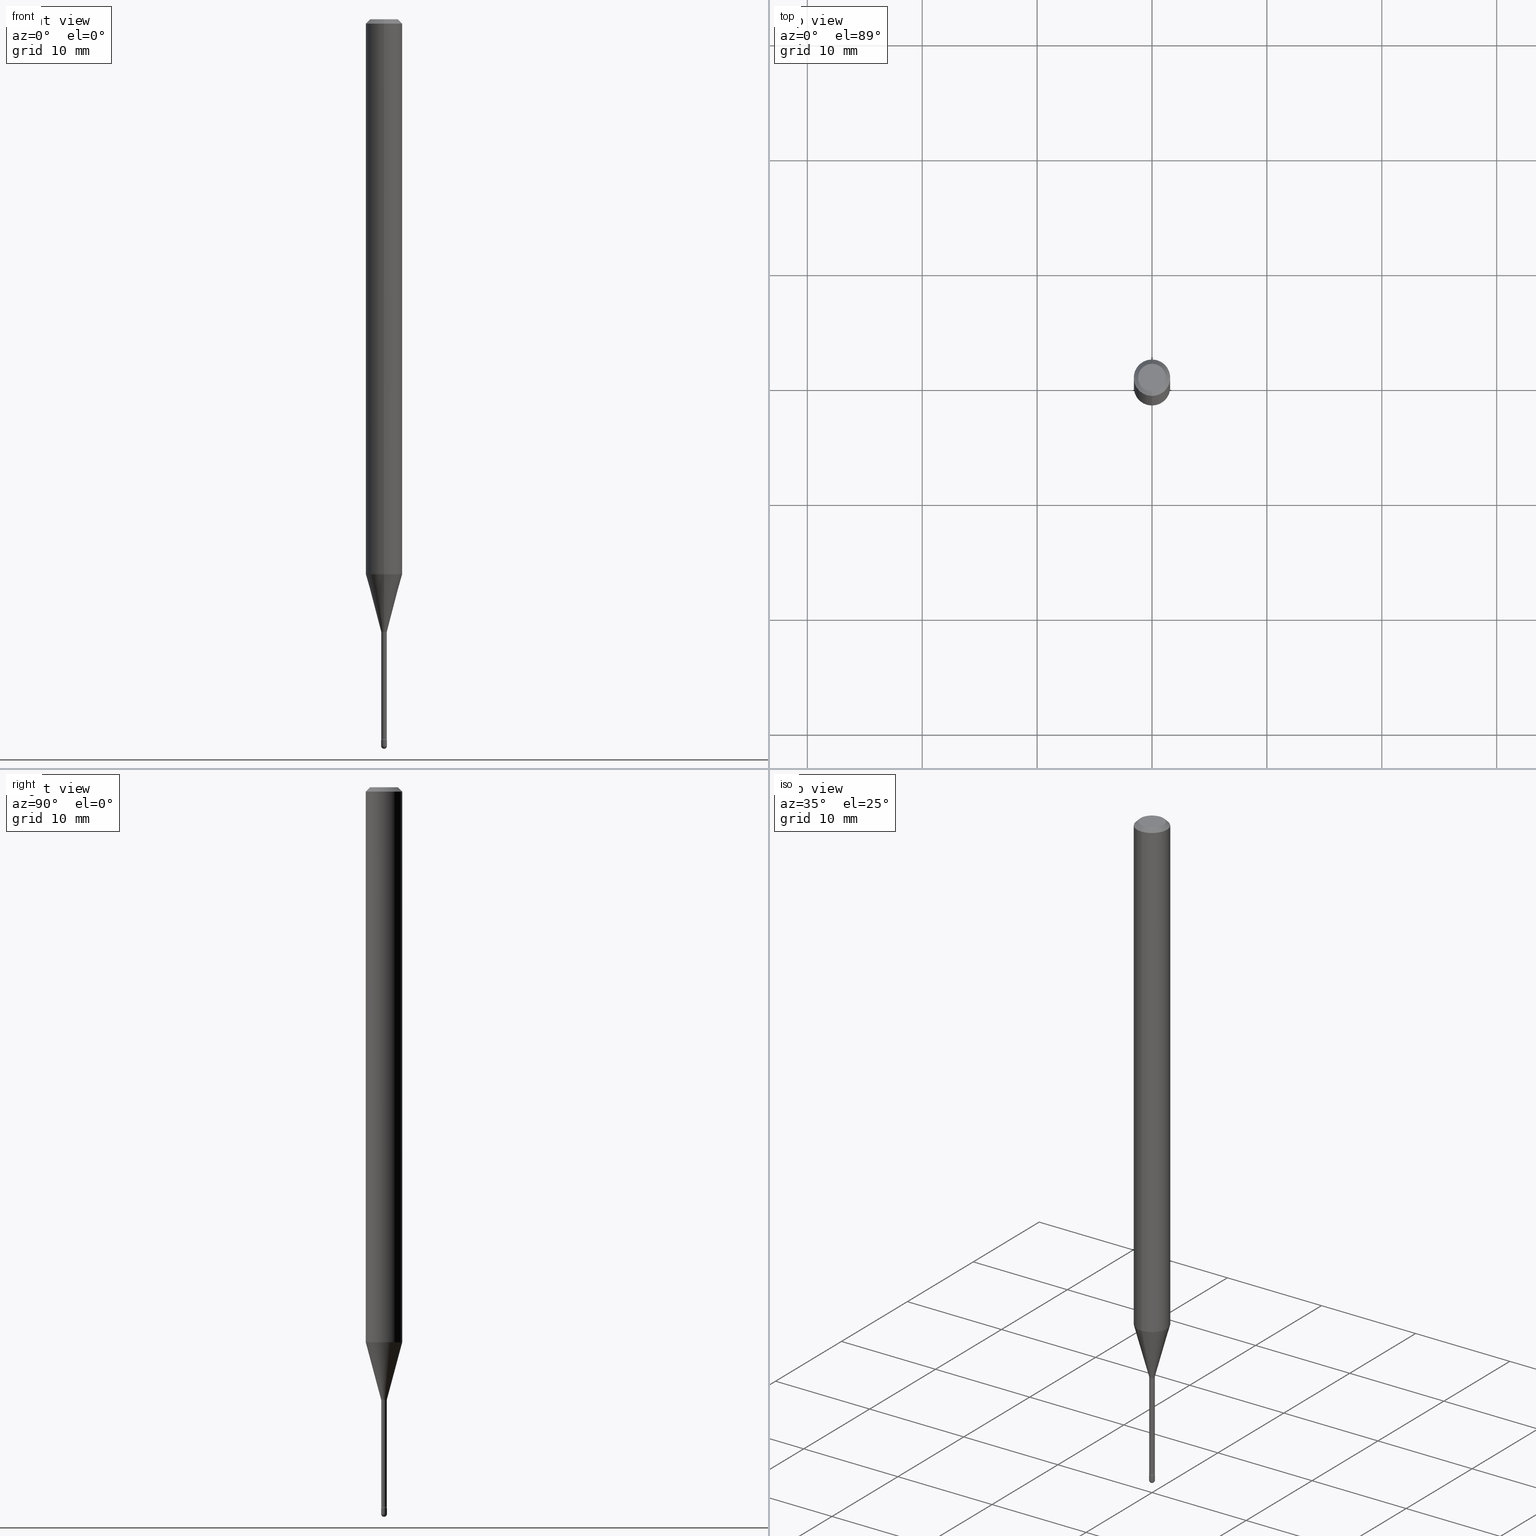
[diagram: canonical four-view strip — front | top / right | iso, engineering-drawing reading convention]
A machine part, canonical four-view strip (front | top / right | iso — engineering-drawing reading convention). The complete STEP part file that produces these views, byte-faithful:
ISO-10303-21;
HEADER;
FILE_DESCRIPTION (( 'STEP AP203' ),
    '1' );
FILE_NAME ('03942.STEP',
    '2024-04-09T21:19:54',
    ( '' ),
    ( '' ),
    'SwSTEP 2.0',
    'SolidWorks 2023',
    '' );
FILE_SCHEMA (( 'CONFIG_CONTROL_DESIGN' ));
ENDSEC;

DATA;
#1 = FACE_OUTER_BOUND ( 'NONE', #138, .T. ) ;
#2 = EDGE_CURVE ( 'NONE', #161, #15, #540, .T. ) ;
#3 = ORIENTED_EDGE ( 'NONE', *, *, #500, .T. ) ;
#4 = CIRCLE ( 'NONE', #402, 0.009400000000000033329 ) ;
#5 = ORIENTED_EDGE ( 'NONE', *, *, #202, .T. ) ;
#6 = CARTESIAN_POINT ( 'NONE',  ( -6.920892941964612771E-17, -0.009911112605671302742, -2.098092501787272912 ) ) ;
#7 = ORIENTED_EDGE ( 'NONE', *, *, #71, .T. ) ;
#8 = CARTESIAN_POINT ( 'NONE',  ( 3.668308659956030169E-31, -5.237070996891533920E-17, -0.01500000000000008271 ) ) ;
#9 = CARTESIAN_POINT ( 'NONE',  ( 5.130967262463350308E-29, -7.325239593270444515E-15, -2.098092501787272912 ) ) ;
#10 = ORIENTED_EDGE ( 'NONE', *, *, #94, .T. ) ;
#11 = ORIENTED_EDGE ( 'NONE', *, *, #549, .T. ) ;
#12 = DIRECTION ( 'NONE',  ( -2.445539106637340355E-29, 3.491380664594336784E-15, 1.000000000000000000 ) ) ;
#13 = AXIS2_PLACEMENT_3D ( 'NONE', #395, #309, #263 ) ;
#14 = TOROIDAL_SURFACE ( 'NONE', #60, 0.02440000000000000155, 0.01500000000000002720 ) ;
#15 = VERTEX_POINT ( 'NONE', #124 ) ;
#16 = DIRECTION ( 'NONE',  ( -1.807323732225326589E-15, -0.2588190451025176864, 0.9659258262890690894 ) ) ;
#17 = PERSON_AND_ORGANIZATION ( #436, #163 ) ;
#18 = DIRECTION ( 'NONE',  ( -2.445539106637340355E-29, 3.491380664594336784E-15, 1.000000000000000000 ) ) ;
#19 = VERTEX_POINT ( 'NONE', #203 ) ;
#20 = CARTESIAN_POINT ( 'NONE',  ( -4.364351673553916201E-16, -0.06250000000000000000, 6.962846904283920876E-16 ) ) ;
#21 = SECURITY_CLASSIFICATION_LEVEL ( 'unclassified' ) ;
#22 = FACE_OUTER_BOUND ( 'NONE', #419, .T. ) ;
#23 = EDGE_CURVE ( 'NONE', #141, #15, #255, .T. ) ;
#24 = EDGE_LOOP ( 'NONE', ( #391, #526, #177, #201 ) ) ;
#25 = DIRECTION ( 'NONE',  ( -2.445539106637340355E-29, 3.491380664594336784E-15, 1.000000000000000000 ) ) ;
#26 = LINE ( 'NONE', #221, #311 ) ;
#27 = ORIENTED_EDGE ( 'NONE', *, *, #33, .F. ) ;
#28 = ORIENTED_EDGE ( 'NONE', *, *, #94, .F. ) ;
#29 = CARTESIAN_POINT ( 'NONE',  ( 1.733724275255158309E-16, 0.02439999999999266367, -2.101974787463810834 ) ) ;
#30 = CIRCLE ( 'NONE', #250, 0.06250000000000000000 ) ;
#31 = ADVANCED_FACE ( 'NONE', ( #73 ), #380, .F. ) ;
#32 = AXIS2_PLACEMENT_3D ( 'NONE', #204, #546, #160 ) ;
#33 = EDGE_CURVE ( 'NONE', #103, #136, #178, .T. ) ;
#34 = AXIS2_PLACEMENT_3D ( 'NONE', #210, #307, #392 ) ;
#35 = CARTESIAN_POINT ( 'NONE',  ( -7.105427357594942569E-17, -0.01000000000000873281, -2.489999999999999769 ) ) ;
#36 = CARTESIAN_POINT ( 'NONE',  ( 6.040481593394230784E-29, -8.623710241548013130E-15, -2.470000000000000195 ) ) ;
#37 = FACE_OUTER_BOUND ( 'NONE', #254, .T. ) ;
#38 = ORIENTED_EDGE ( 'NONE', *, *, #249, .T. ) ;
#39 = DIRECTION ( 'NONE',  ( 6.982962677686265922E-15, 1.000000000000000000, 0.000000000000000000 ) ) ;
#40 = LINE ( 'NONE', #354, #466 ) ;
#41 = AXIS2_PLACEMENT_3D ( 'NONE', #229, #421, #286 ) ;
#42 = AXIS2_PLACEMENT_3D ( 'NONE', #29, #475, #237 ) ;
#43 =( NAMED_UNIT ( * ) SI_UNIT ( $, .STERADIAN. ) SOLID_ANGLE_UNIT ( ) );
#44 = DIRECTION ( 'NONE',  ( -2.445468806185136877E-29, 3.491481338843145188E-15, 1.000000000000000000 ) ) ;
#45 = EDGE_CURVE ( 'NONE', #15, #141, #30, .T. ) ;
#46 = DIRECTION ( 'NONE',  ( 1.000000000000000000, -6.982962677686235945E-15, 0.000000000000000000 ) ) ;
#47 = EDGE_LOOP ( 'NONE', ( #89, #11 ) ) ;
#48 = ORIENTED_EDGE ( 'NONE', *, *, #509, .T. ) ;
#49 = DIRECTION ( 'NONE',  ( -2.445468806185136877E-29, 3.491481338843145188E-15, 1.000000000000000000 ) ) ;
#50 = PRODUCT_DEFINITION ( 'UNKNOWN', '', #515, #330 ) ;
#51 = CC_DESIGN_APPROVAL ( #511, ( #50 ) ) ;
#52 = DIRECTION ( 'NONE',  ( 7.105427357601001859E-15, 1.000000000000000000, 0.000000000000000000 ) ) ;
#53 = DIRECTION ( 'NONE',  ( -6.982962677686265922E-15, -1.000000000000000000, 3.491380664594334812E-15 ) ) ;
#54 = VERTEX_POINT ( 'NONE', #35 ) ;
#55 = PERSON_AND_ORGANIZATION ( #436, #163 ) ;
#56 = CARTESIAN_POINT ( 'NONE',  ( 5.130967262463350308E-29, -7.325239593270444515E-15, -2.098092501787272912 ) ) ;
#57 = DIRECTION ( 'NONE',  ( -2.445539106637340355E-29, 3.491380664594336784E-15, 1.000000000000000000 ) ) ;
#58 = DIRECTION ( 'NONE',  ( -2.445539106637340355E-29, 3.491380664594336784E-15, 1.000000000000000000 ) ) ;
#59 = AXIS2_PLACEMENT_3D ( 'NONE', #150, #225, #332 ) ;
#60 = AXIS2_PLACEMENT_3D ( 'NONE', #131, #267, #469 ) ;
#61 = ORIENTED_EDGE ( 'NONE', *, *, #45, .T. ) ;
#62 = CARTESIAN_POINT ( 'NONE',  ( 2.024064062988603368E-45, -2.888699540228232869E-31, -8.275181409836374411E-17 ) ) ;
#63 = SPHERICAL_SURFACE ( 'NONE', #84, 0.01000000000000008347 ) ;
#64 = VERTEX_POINT ( 'NONE', #218 ) ;
#65 = DATE_AND_TIME ( #412, #304 ) ;
#66 = CARTESIAN_POINT ( 'NONE',  ( 7.105427357607042956E-17, 0.009999999999991380367, -2.470000000000000195 ) ) ;
#67 = EDGE_LOOP ( 'NONE', ( #155, #48, #5, #505 ) ) ;
#68 = CARTESIAN_POINT ( 'NONE',  ( 6.982962677692306673E-17, 0.009999999999991375163, -2.470000000000000195 ) ) ;
#69 = ORIENTED_EDGE ( 'NONE', *, *, #494, .T. ) ;
#70 = CIRCLE ( 'NONE', #77, 0.06250000000000000000 ) ;
#71 = EDGE_CURVE ( 'NONE', #403, #187, #303, .T. ) ;
#72 = DIRECTION ( 'NONE',  ( 1.000000000000000000, 0.000000000000000000, 0.000000000000000000 ) ) ;
#73 = FACE_OUTER_BOUND ( 'NONE', #81, .T. ) ;
#74 = ORIENTED_EDGE ( 'NONE', *, *, #400, .T. ) ;
#75 = CYLINDRICAL_SURFACE ( 'NONE', #134, 0.06250000000000000000 ) ;
#76 = VECTOR ( 'NONE', #25, 39.37007874015748143 ) ;
#77 = AXIS2_PLACEMENT_3D ( 'NONE', #390, #554, #83 ) ;
#78 = DIRECTION ( 'NONE',  ( -2.445539106637340355E-29, 3.491380664594336784E-15, 1.000000000000000000 ) ) ;
#79 = DIRECTION ( 'NONE',  ( -6.982962677686265922E-15, -1.000000000000000000, 3.491380664594336784E-15 ) ) ;
#80 = ADVANCED_FACE ( 'NONE', ( #1 ), #523, .T. ) ;
#81 = EDGE_LOOP ( 'NONE', ( #27, #194 ) ) ;
#82 =( CONVERSION_BASED_UNIT ( 'INCH', #129 ) LENGTH_UNIT ( ) NAMED_UNIT ( #364 ) );
#83 = DIRECTION ( 'NONE',  ( -6.982962677686265922E-15, -1.000000000000000000, 4.370956789862821150E-15 ) ) ;
#84 = AXIS2_PLACEMENT_3D ( 'NONE', #323, #189, #366 ) ;
#85 = CIRCLE ( 'NONE', #472, 0.01000000000000000021 ) ;
#86 = EDGE_CURVE ( 'NONE', #143, #64, #40, .T. ) ;
#87 = DIRECTION ( 'NONE',  ( -2.445539106637340355E-29, 3.491380664594336784E-15, 1.000000000000000000 ) ) ;
#88 = LOCAL_TIME ( 17, 19, 54.00000000000000000, #377 ) ;
#89 = ORIENTED_EDGE ( 'NONE', *, *, #166, .T. ) ;
#90 = ADVANCED_FACE ( 'NONE', ( #562 ), #507, .F. ) ;
#91 = LINE ( 'NONE', #315, #256 ) ;
#92 = ADVANCED_BREP_SHAPE_REPRESENTATION ( '03942', ( #220, #416, #126 ), #313 ) ;
#93 = DATE_AND_TIME ( #148, #88 ) ;
#94 = EDGE_CURVE ( 'NONE', #422, #151, #481, .T. ) ;
#95 = FACE_OUTER_BOUND ( 'NONE', #532, .T. ) ;
#96 = AXIS2_PLACEMENT_3D ( 'NONE', #154, #410, #105 ) ;
#97 = EDGE_LOOP ( 'NONE', ( #496, #351, #465, #170 ) ) ;
#98 = VECTOR ( 'NONE', #49, 39.37007874015748143 ) ;
#99 = ORIENTED_EDGE ( 'NONE', *, *, #439, .F. ) ;
#100 = FACE_OUTER_BOUND ( 'NONE', #24, .T. ) ;
#101 = APPROVAL_DATE_TIME ( #93, #280 ) ;
#102 = DIRECTION ( 'NONE',  ( -2.438088387897960049E-29, 3.491481338843145188E-15, 1.000000000000000000 ) ) ;
#103 = VERTEX_POINT ( 'NONE', #408 ) ;
#104 = DIRECTION ( 'NONE',  ( 1.839019923739596765E-15, 0.2588190451025244587, 0.9659258262890673130 ) ) ;
#105 = DIRECTION ( 'NONE',  ( 6.982962677686265133E-15, 1.000000000000000000, 0.000000000000000000 ) ) ;
#106 = EDGE_CURVE ( 'NONE', #320, #422, #4, .T. ) ;
#107 = COORDINATED_UNIVERSAL_TIME_OFFSET ( 5, 0, .BEHIND. ) ;
#108 = DIRECTION ( 'NONE',  ( -2.445539106637340355E-29, 3.491380664594336784E-15, 1.000000000000000000 ) ) ;
#109 = ORIENTED_EDGE ( 'NONE', *, *, #127, .F. ) ;
#110 = ADVANCED_FACE ( 'NONE', ( #95 ), #348, .T. ) ;
#111 = CIRCLE ( 'NONE', #41, 0.01000000000000000021 ) ;
#112 = CARTESIAN_POINT ( 'NONE',  ( -1.169113584055446105E-44, 1.669184350826100908E-30, 4.780733988912460139E-16 ) ) ;
#113 = DIRECTION ( 'NONE',  ( 1.000000000000000000, -6.982962677686265922E-15, 4.876176775795935793E-29 ) ) ;
#114 = ORIENTED_EDGE ( 'NONE', *, *, #509, .F. ) ;
#115 = EDGE_CURVE ( 'NONE', #187, #403, #389, .T. ) ;
#116 = ORIENTED_EDGE ( 'NONE', *, *, #400, .F. ) ;
#117 = CC_DESIGN_PERSON_AND_ORGANIZATION_ASSIGNMENT ( #462, #153, ( #328 ) ) ;
#118 = EDGE_CURVE ( 'NONE', #205, #190, #206, .T. ) ;
#119 = UNCERTAINTY_MEASURE_WITH_UNIT (LENGTH_MEASURE( 1.000000000000000082E-05 ), #82, 'distance_accuracy_value', 'NONE');
#120 = AXIS2_PLACEMENT_3D ( 'NONE', #9, #144, #488 ) ;
#121 = CIRCLE ( 'NONE', #467, 0.06250000000000000000 ) ;
#122 = ADVANCED_FACE ( 'NONE', ( #22 ), #63, .T. ) ;
#123 = CARTESIAN_POINT ( 'NONE',  ( 6.089217327400989947E-29, -8.693788533719431716E-15, -2.489999999999999769 ) ) ;
#124 = CARTESIAN_POINT ( 'NONE',  ( -4.364351673553912750E-16, -0.06250000000000005551, -0.01499999999999986587 ) ) ;
#125 = DIRECTION ( 'NONE',  ( -6.982962677686265922E-15, -1.000000000000000000, 3.491380664594336784E-15 ) ) ;
#126 = AXIS2_PLACEMENT_3D ( 'NONE', #183, #344, #72 ) ;
#127 = EDGE_CURVE ( 'NONE', #320, #103, #273, .T. ) ;
#128 = CARTESIAN_POINT ( 'NONE',  ( 5.130967262463350308E-29, -7.325239593270444515E-15, -2.098092501787272912 ) ) ;
#129 = LENGTH_MEASURE_WITH_UNIT ( LENGTH_MEASURE( 0.02539999999999999897 ), #172 );
#130 = EDGE_LOOP ( 'NONE', ( #376, #319, #287, #302 ) ) ;
#131 = CARTESIAN_POINT ( 'NONE',  ( 5.140313774130382338E-29, -7.339005745148683013E-15, -2.101974787463810834 ) ) ;
#132 = ADVANCED_FACE ( 'NONE', ( #493 ), #503, .T. ) ;
#133 = CARTESIAN_POINT ( 'NONE',  ( 4.364351673553919652E-16, 0.06249999999999995143, -0.01500000000000030129 ) ) ;
#134 = AXIS2_PLACEMENT_3D ( 'NONE', #474, #352, #79 ) ;
#135 = EDGE_CURVE ( 'NONE', #464, #269, #324, .T. ) ;
#136 = VERTEX_POINT ( 'NONE', #66 ) ;
#137 = DIRECTION ( 'NONE',  ( -6.982962677686265133E-15, -1.000000000000000000, 0.000000000000000000 ) ) ;
#138 = EDGE_LOOP ( 'NONE', ( #116, #38, #510, #428, #340 ) ) ;
#139 = DIRECTION ( 'NONE',  ( -6.982962677686265922E-15, -1.000000000000000000, 4.370956789862821150E-15 ) ) ;
#140 = CARTESIAN_POINT ( 'NONE',  ( 6.114099598607430906E-29, -8.728091023708289184E-15, -2.500000000000000000 ) ) ;
#141 = VERTEX_POINT ( 'NONE', #200 ) ;
#142 = CC_DESIGN_PERSON_AND_ORGANIZATION_ASSIGNMENT ( #404, #252, ( #565 ) ) ;
#143 = VERTEX_POINT ( 'NONE', #463 ) ;
#144 = DIRECTION ( 'NONE',  ( -2.445539106637340355E-29, 3.491380664594336784E-15, 1.000000000000000000 ) ) ;
#145 = EDGE_LOOP ( 'NONE', ( #346, #325, #517, #109 ) ) ;
#146 = VECTOR ( 'NONE', #18, 39.37007874015748143 ) ;
#147 = AXIS2_PLACEMENT_3D ( 'NONE', #310, #259, #435 ) ;
#148 = CALENDAR_DATE ( 2024, 9, 4 ) ;
#149 = DIRECTION ( 'NONE',  ( 1.000000000000000000, -6.982962677686235945E-15, 0.000000000000000000 ) ) ;
#150 = CARTESIAN_POINT ( 'NONE',  ( 6.089217327400989947E-29, -8.693788533719431716E-15, -2.489999999999999769 ) ) ;
#151 = VERTEX_POINT ( 'NONE', #192 ) ;
#152 = EDGE_CURVE ( 'NONE', #205, #54, #211, .T. ) ;
#153 = PERSON_AND_ORGANIZATION_ROLE ( 'classification_officer' ) ;
#154 = CARTESIAN_POINT ( 'NONE',  ( 6.089217327400989947E-29, -8.693788533719431716E-15, -2.489999999999999769 ) ) ;
#155 = ORIENTED_EDGE ( 'NONE', *, *, #115, .F. ) ;
#156 = CARTESIAN_POINT ( 'NONE',  ( 3.668308659956030169E-31, -5.237070996891533920E-17, -0.01500000000000008271 ) ) ;
#157 = CLOSED_SHELL ( 'NONE', ( #353, #524, #239, #375, #261, #110, #453, #270, #341, #356, #31, #90, #226, #338 ) ) ;
#158 = DIRECTION ( 'NONE',  ( -2.445539106637340355E-29, 3.491380664594336784E-15, 1.000000000000000000 ) ) ;
#159 = COORDINATED_UNIVERSAL_TIME_OFFSET ( 5, 0, .BEHIND. ) ;
#160 = DIRECTION ( 'NONE',  ( -6.982962677686265922E-15, -1.000000000000000000, 3.491380664594336784E-15 ) ) ;
#161 = VERTEX_POINT ( 'NONE', #245 ) ;
#162 = CIRCLE ( 'NONE', #59, 0.01000000000000000021 ) ;
#163 = ORGANIZATION ( 'UNSPECIFIED', 'UNSPECIFIED', '' ) ;
#164 = CYLINDRICAL_SURFACE ( 'NONE', #288, 0.06250000000000000000 ) ;
#165 = CC_DESIGN_DATE_AND_TIME_ASSIGNMENT ( #367, #409, ( #50 ) ) ;
#166 = EDGE_CURVE ( 'NONE', #64, #506, #111, .T. ) ;
#167 = PERSON_AND_ORGANIZATION ( #436, #163 ) ;
#168 = ORIENTED_EDGE ( 'NONE', *, *, #230, .T. ) ;
#169 = DIRECTION ( 'NONE',  ( -1.000000000000000000, 6.982962677686265922E-15, -4.883557194083112901E-29 ) ) ;
#170 = ORIENTED_EDGE ( 'NONE', *, *, #23, .T. ) ;
#171 = FACE_OUTER_BOUND ( 'NONE', #67, .T. ) ;
#172 =( LENGTH_UNIT ( ) NAMED_UNIT ( * ) SI_UNIT ( $, .METRE. ) );
#173 = CARTESIAN_POINT ( 'NONE',  ( 3.316907271900976096E-16, 0.04749999999999999362, 3.182021082821012313E-17 ) ) ;
#174 = CIRCLE ( 'NONE', #337, 0.01500000000000003240 ) ;
#175 = DIRECTION ( 'NONE',  ( -2.445539106637340355E-29, 3.491380664594336784E-15, 1.000000000000000000 ) ) ;
#176 = CARTESIAN_POINT ( 'NONE',  ( 6.089217327400989947E-29, -8.693788533719431716E-15, -2.489999999999999769 ) ) ;
#177 = ORIENTED_EDGE ( 'NONE', *, *, #478, .T. ) ;
#178 = CIRCLE ( 'NONE', #342, 0.01000000000000000021 ) ;
#179 = ORIENTED_EDGE ( 'NONE', *, *, #387, .T. ) ;
#180 = AXIS2_PLACEMENT_3D ( 'NONE', #123, #512, #350 ) ;
#181 = EDGE_CURVE ( 'NONE', #54, #143, #368, .T. ) ;
#182 = DIRECTION ( 'NONE',  ( -2.445468806185136597E-29, 3.491481338843145583E-15, 1.000000000000000000 ) ) ;
#183 = CARTESIAN_POINT ( 'NONE',  ( 0.000000000000000000, 0.000000000000000000, 0.000000000000000000 ) ) ;
#184 = DIRECTION ( 'NONE',  ( -6.982962677686265922E-15, -1.000000000000000000, 0.000000000000000000 ) ) ;
#185 = DIRECTION ( 'NONE',  ( -2.445539106637340355E-29, 3.491380664594336784E-15, 1.000000000000000000 ) ) ;
#186 = CC_DESIGN_APPROVAL ( #280, ( #328 ) ) ;
#187 = VERTEX_POINT ( 'NONE', #455 ) ;
#188 = CARTESIAN_POINT ( 'NONE',  ( 3.840629472727447874E-16, 0.04749999999999999362, -2.485923956665947374E-16 ) ) ;
#189 = DIRECTION ( 'NONE',  ( -1.000000000000000000, 6.982962677686265922E-15, -4.883557194083112340E-29 ) ) ;
#190 = VERTEX_POINT ( 'NONE', #272 ) ;
#191 = APPROVAL_DATE_TIME ( #447, #476 ) ;
#192 = CARTESIAN_POINT ( 'NONE',  ( 6.679101716150982958E-17, 0.009399999999992660754, -2.101974787463810834 ) ) ;
#193 = CIRCLE ( 'NONE', #264, 0.009399999999999998634 ) ;
#194 = ORIENTED_EDGE ( 'NONE', *, *, #550, .F. ) ;
#195 = LINE ( 'NONE', #247, #343 ) ;
#196 = CALENDAR_DATE ( 2024, 9, 4 ) ;
#197 = DIRECTION ( 'NONE',  ( -1.000000000000000000, 6.982962677686265922E-15, -4.883557194083112901E-29 ) ) ;
#198 = ORIENTED_EDGE ( 'NONE', *, *, #86, .F. ) ;
#199 = APPROVAL_ROLE ( '' ) ;
#200 = CARTESIAN_POINT ( 'NONE',  ( 4.440892098501093562E-16, 0.06249999999999993755, -0.01500000000000030129 ) ) ;
#201 = ORIENTED_EDGE ( 'NONE', *, *, #345, .F. ) ;
#202 = EDGE_CURVE ( 'NONE', #151, #527, #193, .T. ) ;
#203 = CARTESIAN_POINT ( 'NONE',  ( -0.01000000000000000021, -8.587819446754991563E-15, -2.489999999999999769 ) ) ;
#204 = CARTESIAN_POINT ( 'NONE',  ( 6.030036982291310238E-29, -8.609294685319429365E-15, -2.465800000000000214 ) ) ;
#205 = VERTEX_POINT ( 'NONE', #140 ) ;
#206 = CIRCLE ( 'NONE', #96, 0.01000000000000008347 ) ;
#207 = CONICAL_SURFACE ( 'NONE', #414, 0.06250000000000000000, 0.7853981633974483900 ) ;
#208 = DIRECTION ( 'NONE',  ( -2.445539106637340355E-29, 3.491380664594336784E-15, 1.000000000000000000 ) ) ;
#209 = AXIS2_PLACEMENT_3D ( 'NONE', #486, #87, #268 ) ;
#210 = CARTESIAN_POINT ( 'NONE',  ( 5.140313774130382338E-29, -7.339005745148683013E-15, -2.101974787463810834 ) ) ;
#211 = CIRCLE ( 'NONE', #297, 0.01000000000000008347 ) ;
#212 = FACE_OUTER_BOUND ( 'NONE', #516, .T. ) ;
#213 = AXIS2_PLACEMENT_3D ( 'NONE', #318, #108, #498 ) ;
#214 = CONICAL_SURFACE ( 'NONE', #370, 0.009911112605663977004, 0.2617993877991497409 ) ;
#215 = CARTESIAN_POINT ( 'NONE',  ( -3.773273898774340269E-16, -0.04749999999999999362, 8.308876746986722452E-17 ) ) ;
#216 = DIRECTION ( 'NONE',  ( -2.445539106637340355E-29, 3.491380664594336784E-15, 1.000000000000000000 ) ) ;
#217 = APPLICATION_CONTEXT ( 'configuration controlled 3d designs of mechanical parts and assemblies' ) ;
#218 = CARTESIAN_POINT ( 'NONE',  ( 0.01000000000000000021, -8.693788533719433294E-15, -2.470000000000000195 ) ) ;
#219 = EDGE_LOOP ( 'NONE', ( #547, #382, #543, #246 ) ) ;
#220 = MANIFOLD_SOLID_BREP ( 'Body-Move/Copy2[1]', #432 ) ;
#221 = CARTESIAN_POINT ( 'NONE',  ( 4.440892098500625669E-16, 0.06250000000000000000, 2.598621073540999896E-16 ) ) ;
#222 = ORIENTED_EDGE ( 'NONE', *, *, #494, .F. ) ;
#223 = PRODUCT_DEFINITION_SHAPE ( 'NONE', 'NONE',  #50 ) ;
#224 = DIRECTION ( 'NONE',  ( -2.445539106637340355E-29, 3.491380664594336784E-15, 1.000000000000000000 ) ) ;
#225 = DIRECTION ( 'NONE',  ( -2.445468806185136597E-29, 3.491481338843145583E-15, 1.000000000000000000 ) ) ;
#226 = ADVANCED_FACE ( 'NONE', ( #233 ), #413, .T. ) ;
#227 = CC_DESIGN_SECURITY_CLASSIFICATION ( #328, ( #515 ) ) ;
#228 = LINE ( 'NONE', #277, #427 ) ;
#229 = CARTESIAN_POINT ( 'NONE',  ( 6.040307951277287977E-29, -8.623958906942569995E-15, -2.470000000000000195 ) ) ;
#230 = EDGE_CURVE ( 'NONE', #143, #190, #162, .T. ) ;
#231 = DIRECTION ( 'NONE',  ( -6.982962677686265922E-15, -1.000000000000000000, 0.000000000000000000 ) ) ;
#232 = COORDINATED_UNIVERSAL_TIME_OFFSET ( 5, 0, .BEHIND. ) ;
#233 = FACE_OUTER_BOUND ( 'NONE', #248, .T. ) ;
#234 = ORIENTED_EDGE ( 'NONE', *, *, #456, .T. ) ;
#235 = CIRCLE ( 'NONE', #551, 0.01000000000000000021 ) ;
#236 = AXIS2_PLACEMENT_3D ( 'NONE', #176, #522, #39 ) ;
#237 = DIRECTION ( 'NONE',  ( 7.105427357601003436E-15, 1.000000000000000000, 0.000000000000000000 ) ) ;
#238 = PERSON_AND_ORGANIZATION ( #436, #163 ) ;
#239 = ADVANCED_FACE ( 'NONE', ( #378 ), #483, .F. ) ;
#240 = CARTESIAN_POINT ( 'NONE',  ( 6.089217327400989947E-29, -8.693788533719431716E-15, -2.489999999999999769 ) ) ;
#241 = LOCAL_TIME ( 17, 19, 54.00000000000000000, #159 ) ;
#242 = ORIENTED_EDGE ( 'NONE', *, *, #500, .F. ) ;
#243 = DIRECTION ( 'NONE',  ( -6.982962677686265922E-15, -1.000000000000000000, 3.483106191921935554E-15 ) ) ;
#244 = APPROVAL_DATE_TIME ( #65, #511 ) ;
#245 = CARTESIAN_POINT ( 'NONE',  ( -4.364351673553452252E-16, -0.06250000000000664746, -1.901828102118092501 ) ) ;
#246 = ORIENTED_EDGE ( 'NONE', *, *, #2, .F. ) ;
#247 = CARTESIAN_POINT ( 'NONE',  ( -6.563984917025101170E-17, -0.009400000000000015982, 5.108923771384328722E-16 ) ) ;
#248 = EDGE_LOOP ( 'NONE', ( #28, #415, #69, #561 ) ) ;
#249 = EDGE_CURVE ( 'NONE', #19, #54, #235, .T. ) ;
#250 = AXIS2_PLACEMENT_3D ( 'NONE', #156, #437, #423 ) ;
#251 = CIRCLE ( 'NONE', #393, 0.009400000000000033329 ) ;
#252 = PERSON_AND_ORGANIZATION_ROLE ( 'design_owner' ) ;
#253 = EDGE_CURVE ( 'NONE', #521, #141, #26, .T. ) ;
#254 = EDGE_LOOP ( 'NONE', ( #401, #473 ) ) ;
#255 = CIRCLE ( 'NONE', #489, 0.06250000000000000000 ) ;
#256 = VECTOR ( 'NONE', #104, 39.37007874015748143 ) ;
#257 = FACE_OUTER_BOUND ( 'NONE', #97, .T. ) ;
#258 = DIRECTION ( 'NONE',  ( -6.982962677686265922E-15, -1.000000000000000000, 0.000000000000000000 ) ) ;
#259 = DIRECTION ( 'NONE',  ( 2.445539106637340355E-29, -3.491380664594336784E-15, -1.000000000000000000 ) ) ;
#260 = CC_DESIGN_PERSON_AND_ORGANIZATION_ASSIGNMENT ( #451, #417, ( #515 ) ) ;
#261 = ADVANCED_FACE ( 'NONE', ( #430 ), #164, .T. ) ;
#262 = ORIENTED_EDGE ( 'NONE', *, *, #33, .T. ) ;
#263 = DIRECTION ( 'NONE',  ( 1.000000000000000000, -6.982962677686265922E-15, 4.876176775795935793E-29 ) ) ;
#264 = AXIS2_PLACEMENT_3D ( 'NONE', #362, #58, #529 ) ;
#265 = VECTOR ( 'NONE', #411, 39.37007874015748143 ) ;
#266 = ORIENTED_EDGE ( 'NONE', *, *, #127, .T. ) ;
#267 = DIRECTION ( 'NONE',  ( -2.445539106637340355E-29, 3.491380664594336784E-15, 1.000000000000000000 ) ) ;
#268 = DIRECTION ( 'NONE',  ( -6.982962677686265922E-15, -1.000000000000000000, 3.491380664594336784E-15 ) ) ;
#269 = VERTEX_POINT ( 'NONE', #215 ) ;
#270 = ADVANCED_FACE ( 'NONE', ( #564 ), #75, .T. ) ;
#271 = DIRECTION ( 'NONE',  ( 2.445539106637340355E-29, -3.491380664594336784E-15, -1.000000000000000000 ) ) ;
#272 = CARTESIAN_POINT ( 'NONE',  ( 6.982962677692383094E-17, 0.009999999999991347407, -2.489999999999999769 ) ) ;
#273 = CIRCLE ( 'NONE', #425, 0.01500000000000001506 ) ;
#274 = ADVANCED_FACE ( 'NONE', ( #397 ), #444, .T. ) ;
#275 = CIRCLE ( 'NONE', #434, 0.04749999999999999362 ) ;
#276 = APPLICATION_CONTEXT ( 'configuration controlled 3d designs of mechanical parts and assemblies' ) ;
#277 = CARTESIAN_POINT ( 'NONE',  ( -6.920892941964612771E-17, -0.009911112605671302742, -2.098092501787272912 ) ) ;
#278 = APPROVAL_ROLE ( '' ) ;
#279 = DIRECTION ( 'NONE',  ( -6.982962677686262766E-15, -1.000000000000000000, 0.000000000000000000 ) ) ;
#280 = APPROVAL ( #491, 'UNSPECIFIED' ) ;
#281 = ORIENTED_EDGE ( 'NONE', *, *, #152, .T. ) ;
#282 = EDGE_CURVE ( 'NONE', #190, #19, #360, .T. ) ;
#283 = ORIENTED_EDGE ( 'NONE', *, *, #535, .T. ) ;
#284 = DIRECTION ( 'NONE',  ( 1.000000000000000000, -6.982962677686265922E-15, 4.876176775795935793E-29 ) ) ;
#285 = CARTESIAN_POINT ( 'NONE',  ( 6.089217327400989947E-29, -8.693788533719431716E-15, -2.489999999999999769 ) ) ;
#286 = DIRECTION ( 'NONE',  ( 1.000000000000000000, -6.982962677686235945E-15, 0.000000000000000000 ) ) ;
#287 = ORIENTED_EDGE ( 'NONE', *, *, #2, .T. ) ;
#288 = AXIS2_PLACEMENT_3D ( 'NONE', #394, #175, #125 ) ;
#289 = LOCAL_TIME ( 17, 19, 54.00000000000000000, #107 ) ;
#290 = CARTESIAN_POINT ( 'NONE',  ( 3.668308659956030169E-31, -5.237070996891533920E-17, -0.01500000000000008271 ) ) ;
#291 = PERSON_AND_ORGANIZATION_ROLE ( 'creator' ) ;
#292 = DIRECTION ( 'NONE',  ( -7.105427357601000281E-15, -1.000000000000000000, 0.000000000000000000 ) ) ;
#293 = ORIENTED_EDGE ( 'NONE', *, *, #71, .F. ) ;
#294 = DIRECTION ( 'NONE',  ( -6.982962677686265922E-15, -1.000000000000000000, 3.491380664594336784E-15 ) ) ;
#295 = EDGE_LOOP ( 'NONE', ( #490, #10, #242, #222 ) ) ;
#296 = EDGE_CURVE ( 'NONE', #422, #320, #251, .T. ) ;
#297 = AXIS2_PLACEMENT_3D ( 'NONE', #374, #452, #292 ) ;
#298 = CIRCLE ( 'NONE', #42, 0.01500000000000002373 ) ;
#299 = EDGE_CURVE ( 'NONE', #464, #141, #300, .T. ) ;
#300 = LINE ( 'NONE', #133, #349 ) ;
#301 = DIRECTION ( 'NONE',  ( -2.445539106637340355E-29, 3.491380664594336784E-15, 1.000000000000000000 ) ) ;
#302 = ORIENTED_EDGE ( 'NONE', *, *, #23, .F. ) ;
#303 = CIRCLE ( 'NONE', #383, 0.009911112605663977004 ) ;
#304 = LOCAL_TIME ( 17, 19, 54.00000000000000000, #232 ) ;
#305 = DIRECTION ( 'NONE',  ( -6.982962677686265922E-15, -1.000000000000000000, 0.000000000000000000 ) ) ;
#306 = DIRECTION ( 'NONE',  ( -6.982962677686265922E-15, -1.000000000000000000, 0.000000000000000000 ) ) ;
#307 = DIRECTION ( 'NONE',  ( -2.445539106637340355E-29, 3.491380664594336784E-15, 1.000000000000000000 ) ) ;
#308 = APPROVAL_ROLE ( '' ) ;
#309 = DIRECTION ( 'NONE',  ( -2.445468806185136597E-29, 3.491481338843145583E-15, 1.000000000000000000 ) ) ;
#310 = CARTESIAN_POINT ( 'NONE',  ( 3.668308659956030169E-31, -5.237070996891533920E-17, -0.01500000000000008271 ) ) ;
#311 = VECTOR ( 'NONE', #185, 39.37007874015748143 ) ;
#312 = DIRECTION ( 'NONE',  ( 4.937700262164548042E-15, 0.7071067811865451302, -0.7071067811865499042 ) ) ;
#313 =( GEOMETRIC_REPRESENTATION_CONTEXT ( 3 ) GLOBAL_UNCERTAINTY_ASSIGNED_CONTEXT ( ( #119 ) ) GLOBAL_UNIT_ASSIGNED_CONTEXT ( ( #82, #396, #43 ) ) REPRESENTATION_CONTEXT ( 'NONE', 'WORKASPACE' ) );
#314 = EDGE_LOOP ( 'NONE', ( #347, #539, #316, #563 ) ) ;
#315 = CARTESIAN_POINT ( 'NONE',  ( 7.042269065260026074E-17, 0.009911112605656653002, -2.098092501787272912 ) ) ;
#316 = ORIENTED_EDGE ( 'NONE', *, *, #230, .F. ) ;
#317 = CARTESIAN_POINT ( 'NONE',  ( -0.01000000000000000021, 7.105427357601002007E-17, -4.918935090254906272E-31 ) ) ;
#318 = CARTESIAN_POINT ( 'NONE',  ( 2.024064062988603368E-45, -2.888699540228232869E-31, -8.275181409836374411E-17 ) ) ;
#319 = ORIENTED_EDGE ( 'NONE', *, *, #345, .T. ) ;
#320 = VERTEX_POINT ( 'NONE', #485 ) ;
#321 = DIRECTION ( 'NONE',  ( 1.000000000000000000, -7.105427357601001070E-15, 4.926314275638116891E-29 ) ) ;
#322 = DATE_AND_TIME ( #530, #241 ) ;
#323 = CARTESIAN_POINT ( 'NONE',  ( 6.089217327400989947E-29, -8.693788533719431716E-15, -2.489999999999999769 ) ) ;
#324 = CIRCLE ( 'NONE', #213, 0.04749999999999999362 ) ;
#325 = ORIENTED_EDGE ( 'NONE', *, *, #439, .T. ) ;
#326 = FACE_OUTER_BOUND ( 'NONE', #482, .T. ) ;
#327 = SHAPE_DEFINITION_REPRESENTATION ( #223, #92 ) ;
#328 = SECURITY_CLASSIFICATION ( '', '', #21 ) ;
#329 = CARTESIAN_POINT ( 'NONE',  ( 6.040307951277287977E-29, -8.623958906942569995E-15, -2.470000000000000195 ) ) ;
#330 = DESIGN_CONTEXT ( 'detailed design', #276, 'design' ) ;
#331 = DIRECTION ( 'NONE',  ( -6.982962677686266711E-15, -1.000000000000000000, 3.491380664594336784E-15 ) ) ;
#332 = DIRECTION ( 'NONE',  ( 1.000000000000000000, -6.982962677686235945E-15, 0.000000000000000000 ) ) ;
#333 = ORIENTED_EDGE ( 'NONE', *, *, #282, .F. ) ;
#334 = PERSON_AND_ORGANIZATION_ROLE ( 'creator' ) ;
#335 = CARTESIAN_POINT ( 'NONE',  ( -1.703842893354849086E-16, -0.02440000000000865435, -2.465800000000000214 ) ) ;
#336 = EDGE_LOOP ( 'NONE', ( #99, #371, #266, #262 ) ) ;
#337 = AXIS2_PLACEMENT_3D ( 'NONE', #548, #169, #137 ) ;
#338 = ADVANCED_FACE ( 'NONE', ( #479 ), #14, .F. ) ;
#339 = DIRECTION ( 'NONE',  ( 1.000000000000000000, -6.982962677686235945E-15, 0.000000000000000000 ) ) ;
#340 = ORIENTED_EDGE ( 'NONE', *, *, #549, .F. ) ;
#341 = ADVANCED_FACE ( 'NONE', ( #257 ), #448, .T. ) ;
#342 = AXIS2_PLACEMENT_3D ( 'NONE', #544, #78, #258 ) ;
#343 = VECTOR ( 'NONE', #438, 39.37007874015748143 ) ;
#344 = DIRECTION ( 'NONE',  ( 0.000000000000000000, 0.000000000000000000, 1.000000000000000000 ) ) ;
#345 = EDGE_CURVE ( 'NONE', #521, #161, #70, .T. ) ;
#346 = ORIENTED_EDGE ( 'NONE', *, *, #296, .F. ) ;
#347 = ORIENTED_EDGE ( 'NONE', *, *, #152, .F. ) ;
#348 = CONICAL_SURFACE ( 'NONE', #513, 0.009911112605663977004, 0.2617993877991497409 ) ;
#349 = VECTOR ( 'NONE', #312, 39.37007874015748143 ) ;
#350 = DIRECTION ( 'NONE',  ( 1.000000000000000000, -6.982962677686235945E-15, 0.000000000000000000 ) ) ;
#351 = ORIENTED_EDGE ( 'NONE', *, *, #135, .F. ) ;
#352 = DIRECTION ( 'NONE',  ( -2.445539106637340355E-29, 3.491380664594336784E-15, 1.000000000000000000 ) ) ;
#353 = ADVANCED_FACE ( 'NONE', ( #171 ), #560, .F. ) ;
#354 = CARTESIAN_POINT ( 'NONE',  ( 0.01000000000000000021, -6.982962677686265724E-17, 4.876176775795935968E-31 ) ) ;
#355 = CARTESIAN_POINT ( 'NONE',  ( 6.030210329146355231E-29, -8.609046442756715836E-15, -2.465800000000000214 ) ) ;
#356 = ADVANCED_FACE ( 'NONE', ( #37 ), #557, .F. ) ;
#357 = CARTESIAN_POINT ( 'NONE',  ( 6.040307951277287977E-29, -8.623958906942569995E-15, -2.470000000000000195 ) ) ;
#358 = AXIS2_PLACEMENT_3D ( 'NONE', #538, #449, #53 ) ;
#359 = ORIENTED_EDGE ( 'NONE', *, *, #299, .F. ) ;
#360 = CIRCLE ( 'NONE', #180, 0.01000000000000000021 ) ;
#361 = CARTESIAN_POINT ( 'NONE',  ( 6.892264536879022818E-17, 0.009399999999991425631, -2.465800000000000214 ) ) ;
#362 = CARTESIAN_POINT ( 'NONE',  ( 5.140461543908462092E-29, -7.338794130415940645E-15, -2.101974787463810834 ) ) ;
#363 = ORIENTED_EDGE ( 'NONE', *, *, #478, .F. ) ;
#364 = DIMENSIONAL_EXPONENTS ( 1.000000000000000000, 0.000000000000000000, 0.000000000000000000, 0.000000000000000000, 0.000000000000000000, 0.000000000000000000, 0.000000000000000000 ) ;
#365 = CYLINDRICAL_SURFACE ( 'NONE', #405, 0.01000000000000000021 ) ;
#366 = DIRECTION ( 'NONE',  ( 6.982962677686265922E-15, 1.000000000000000000, 0.000000000000000000 ) ) ;
#367 = DATE_AND_TIME ( #458, #289 ) ;
#368 = CIRCLE ( 'NONE', #441, 0.01000000000000000021 ) ;
#369 = DIRECTION ( 'NONE',  ( -2.445468806185136597E-29, 3.491481338843145583E-15, 1.000000000000000000 ) ) ;
#370 = AXIS2_PLACEMENT_3D ( 'NONE', #454, #57, #231 ) ;
#371 = ORIENTED_EDGE ( 'NONE', *, *, #106, .F. ) ;
#372 = DIRECTION ( 'NONE',  ( -2.445539106637340355E-29, 3.491380664594336784E-15, 1.000000000000000000 ) ) ;
#373 = CC_DESIGN_PERSON_AND_ORGANIZATION_ASSIGNMENT ( #55, #334, ( #50 ) ) ;
#374 = CARTESIAN_POINT ( 'NONE',  ( 6.089217327400989947E-29, -8.693788533719431716E-15, -2.489999999999999769 ) ) ;
#375 = ADVANCED_FACE ( 'NONE', ( #212 ), #207, .T. ) ;
#376 = ORIENTED_EDGE ( 'NONE', *, *, #253, .F. ) ;
#377 = COORDINATED_UNIVERSAL_TIME_OFFSET ( 5, 0, .BEHIND. ) ;
#378 = FACE_OUTER_BOUND ( 'NONE', #145, .T. ) ;
#379 = EDGE_LOOP ( 'NONE', ( #114, #293, #283, #3 ) ) ;
#380 = PLANE ( 'NONE',  #471 ) ;
#381 = DIRECTION ( 'NONE',  ( -2.445468806185136597E-29, 3.491481338843145583E-15, 1.000000000000000000 ) ) ;
#382 = ORIENTED_EDGE ( 'NONE', *, *, #253, .T. ) ;
#383 = AXIS2_PLACEMENT_3D ( 'NONE', #128, #399, #477 ) ;
#384 = AXIS2_PLACEMENT_3D ( 'NONE', #357, #558, #46 ) ;
#385 = EDGE_CURVE ( 'NONE', #269, #464, #275, .T. ) ;
#386 = DIRECTION ( 'NONE',  ( -6.982962677686265922E-15, -1.000000000000000000, 3.491380664594334812E-15 ) ) ;
#387 = EDGE_CURVE ( 'NONE', #187, #521, #91, .T. ) ;
#388 = APPLICATION_PROTOCOL_DEFINITION ( 'international standard', 'config_control_design', 1994, #276 ) ;
#389 = CIRCLE ( 'NONE', #120, 0.009911112605663977004 ) ;
#390 = CARTESIAN_POINT ( 'NONE',  ( 4.650994997831669518E-29, -6.640005863117252053E-15, -1.901828102118092945 ) ) ;
#391 = ORIENTED_EDGE ( 'NONE', *, *, #387, .F. ) ;
#392 = DIRECTION ( 'NONE',  ( -6.982962677686265922E-15, -1.000000000000000000, 3.491380664594336784E-15 ) ) ;
#393 = AXIS2_PLACEMENT_3D ( 'NONE', #355, #443, #305 ) ;
#394 = CARTESIAN_POINT ( 'NONE',  ( -1.169113584055446105E-44, 1.669184350826100908E-30, 4.780733988912460139E-16 ) ) ;
#395 = CARTESIAN_POINT ( 'NONE',  ( 0.000000000000000000, 0.000000000000000000, 0.000000000000000000 ) ) ;
#396 =( NAMED_UNIT ( * ) PLANE_ANGLE_UNIT ( ) SI_UNIT ( $, .RADIAN. ) );
#397 = FACE_OUTER_BOUND ( 'NONE', #314, .T. ) ;
#398 = DIRECTION ( 'NONE',  ( -6.982962677686265922E-15, -1.000000000000000000, 0.000000000000000000 ) ) ;
#399 = DIRECTION ( 'NONE',  ( -2.445539106637340355E-29, 3.491380664594336784E-15, 1.000000000000000000 ) ) ;
#400 = EDGE_CURVE ( 'NONE', #19, #506, #537, .T. ) ;
#401 = ORIENTED_EDGE ( 'NONE', *, *, #135, .T. ) ;
#402 = AXIS2_PLACEMENT_3D ( 'NONE', #497, #12, #531 ) ;
#403 = VERTEX_POINT ( 'NONE', #6 ) ;
#404 = PERSON_AND_ORGANIZATION ( #436, #163 ) ;
#405 = AXIS2_PLACEMENT_3D ( 'NONE', #487, #182, #284 ) ;
#406 = APPROVAL_PERSON_ORGANIZATION ( #502, #280, #199 ) ;
#407 = CARTESIAN_POINT ( 'NONE',  ( -4.287811248607203282E-16, -0.06250000000000005551, -0.01499999999999986587 ) ) ;
#408 = CARTESIAN_POINT ( 'NONE',  ( -6.982962677680230939E-17, -0.01000000000000862872, -2.470000000000000195 ) ) ;
#409 = DATE_TIME_ROLE ( 'creation_date' ) ;
#410 = DIRECTION ( 'NONE',  ( 1.000000000000000000, -6.982962677686265922E-15, 4.883557194083112340E-29 ) ) ;
#411 = DIRECTION ( 'NONE',  ( -4.851104656540964275E-15, -0.7071067811865500152, -0.7071067811865450192 ) ) ;
#412 = CALENDAR_DATE ( 2024, 9, 4 ) ;
#413 = CYLINDRICAL_SURFACE ( 'NONE', #358, 0.009400000000000015982 ) ;
#414 = AXIS2_PLACEMENT_3D ( 'NONE', #8, #271, #457 ) ;
#415 = ORIENTED_EDGE ( 'NONE', *, *, #296, .T. ) ;
#416 = MANIFOLD_SOLID_BREP ( 'Body-Move/Copy2[2]', #157 ) ;
#417 = PERSON_AND_ORGANIZATION_ROLE ( 'design_supplier' ) ;
#418 = ADVANCED_FACE ( 'NONE', ( #326 ), #365, .T. ) ;
#419 = EDGE_LOOP ( 'NONE', ( #460, #281, #566, #333 ) ) ;
#420 = COORDINATED_UNIVERSAL_TIME_OFFSET ( 5, 0, .BEHIND. ) ;
#421 = DIRECTION ( 'NONE',  ( -2.445468806185136597E-29, 3.491481338843145583E-15, 1.000000000000000000 ) ) ;
#422 = VERTEX_POINT ( 'NONE', #361 ) ;
#423 = DIRECTION ( 'NONE',  ( -6.982962677686265922E-15, -1.000000000000000000, 3.483106191921935554E-15 ) ) ;
#424 = CARTESIAN_POINT ( 'NONE',  ( -0.01000000000000000021, -8.587819446754991563E-15, -2.470000000000000195 ) ) ;
#425 = AXIS2_PLACEMENT_3D ( 'NONE', #335, #197, #279 ) ;
#426 = PRODUCT_RELATED_PRODUCT_CATEGORY ( 'detail', '', ( #565 ) ) ;
#427 = VECTOR ( 'NONE', #16, 39.37007874015748854 ) ;
#428 = ORIENTED_EDGE ( 'NONE', *, *, #86, .T. ) ;
#429 = CC_DESIGN_APPROVAL ( #476, ( #515 ) ) ;
#430 = FACE_OUTER_BOUND ( 'NONE', #219, .T. ) ;
#431 = EDGE_CURVE ( 'NONE', #161, #521, #121, .T. ) ;
#432 = CLOSED_SHELL ( 'NONE', ( #418, #122, #132, #274, #80 ) ) ;
#433 = CARTESIAN_POINT ( 'NONE',  ( 4.440892098501090604E-16, 0.06249999999999336642, -1.901828102118093167 ) ) ;
#434 = AXIS2_PLACEMENT_3D ( 'NONE', #62, #372, #331 ) ;
#435 = DIRECTION ( 'NONE',  ( 6.982962677686265922E-15, 1.000000000000000000, -3.483106191921935554E-15 ) ) ;
#436 = PERSON ( 'UNSPECIFIED', 'UNSPECIFIED', 'UNSPECIFIED', ('UNSPECIFIED'), ('UNSPECIFIED'), ('UNSPECIFIED') ) ;
#437 = DIRECTION ( 'NONE',  ( -2.445539106637340355E-29, 3.491380664594336784E-15, 1.000000000000000000 ) ) ;
#438 = DIRECTION ( 'NONE',  ( -2.445539106637340355E-29, 3.491380664594336784E-15, 1.000000000000000000 ) ) ;
#439 = EDGE_CURVE ( 'NONE', #422, #136, #552, .T. ) ;
#440 = DIRECTION ( 'NONE',  ( 6.982962677686265922E-15, 1.000000000000000000, -3.491380664594336784E-15 ) ) ;
#441 = AXIS2_PLACEMENT_3D ( 'NONE', #285, #369, #149 ) ;
#442 = CIRCLE ( 'NONE', #384, 0.01000000000000000021 ) ;
#443 = DIRECTION ( 'NONE',  ( -2.445539106637340355E-29, 3.491380664594336784E-15, 1.000000000000000000 ) ) ;
#444 = SPHERICAL_SURFACE ( 'NONE', #236, 0.01000000000000008347 ) ;
#445 = ORIENTED_EDGE ( 'NONE', *, *, #166, .F. ) ;
#446 = CARTESIAN_POINT ( 'NONE',  ( 1.733724275255250261E-16, 0.02439999999999143548, -2.465800000000000214 ) ) ;
#447 = DATE_AND_TIME ( #196, #468 ) ;
#448 = CONICAL_SURFACE ( 'NONE', #147, 0.06250000000000000000, 0.7853981633974483900 ) ;
#449 = DIRECTION ( 'NONE',  ( -2.445539106637340355E-29, 3.491380664594336784E-15, 1.000000000000000000 ) ) ;
#450 = LINE ( 'NONE', #407, #265 ) ;
#451 = PERSON_AND_ORGANIZATION ( #436, #163 ) ;
#452 = DIRECTION ( 'NONE',  ( -1.000000000000000000, 7.105427357601001070E-15, -4.926315508542082329E-29 ) ) ;
#453 = ADVANCED_FACE ( 'NONE', ( #100 ), #214, .T. ) ;
#454 = CARTESIAN_POINT ( 'NONE',  ( 5.130967262463350308E-29, -7.325239593270444515E-15, -2.098092501787272912 ) ) ;
#455 = CARTESIAN_POINT ( 'NONE',  ( 2.572559502513548023E-16, 0.009911112605656653002, -2.098092501787272912 ) ) ;
#456 = EDGE_CURVE ( 'NONE', #269, #15, #450, .T. ) ;
#457 = DIRECTION ( 'NONE',  ( 6.982962677686265922E-15, 1.000000000000000000, -3.483106191921935554E-15 ) ) ;
#458 = CALENDAR_DATE ( 2024, 9, 4 ) ;
#459 = AXIS2_PLACEMENT_3D ( 'NONE', #446, #321, #52 ) ;
#460 = ORIENTED_EDGE ( 'NONE', *, *, #118, .F. ) ;
#461 = CYLINDRICAL_SURFACE ( 'NONE', #525, 0.009400000000000015982 ) ;
#462 = PERSON_AND_ORGANIZATION ( #436, #163 ) ;
#463 = CARTESIAN_POINT ( 'NONE',  ( 0.01000000000000000021, -8.728703347107863365E-15, -2.489999999999999769 ) ) ;
#464 = VERTEX_POINT ( 'NONE', #188 ) ;
#465 = ORIENTED_EDGE ( 'NONE', *, *, #299, .T. ) ;
#466 = VECTOR ( 'NONE', #44, 39.37007874015748143 ) ;
#467 = AXIS2_PLACEMENT_3D ( 'NONE', #528, #224, #139 ) ;
#468 = LOCAL_TIME ( 17, 19, 54.00000000000000000, #420 ) ;
#469 = DIRECTION ( 'NONE',  ( -6.982962677686265922E-15, -1.000000000000000000, 3.491380664594336784E-15 ) ) ;
#470 = DIRECTION ( 'NONE',  ( -2.445539106637339795E-29, 3.491380664594336784E-15, 1.000000000000000000 ) ) ;
#471 = AXIS2_PLACEMENT_3D ( 'NONE', #68, #470, #294 ) ;
#472 = AXIS2_PLACEMENT_3D ( 'NONE', #36, #216, #398 ) ;
#473 = ORIENTED_EDGE ( 'NONE', *, *, #385, .T. ) ;
#474 = CARTESIAN_POINT ( 'NONE',  ( -1.169113584055446105E-44, 1.669184350826100908E-30, 4.780733988912460139E-16 ) ) ;
#475 = DIRECTION ( 'NONE',  ( 1.000000000000000000, -7.105427357601001070E-15, 4.926314275638116891E-29 ) ) ;
#476 = APPROVAL ( #541, 'UNSPECIFIED' ) ;
#477 = DIRECTION ( 'NONE',  ( -6.982962677686265922E-15, -1.000000000000000000, 0.000000000000000000 ) ) ;
#478 = EDGE_CURVE ( 'NONE', #403, #161, #228, .T. ) ;
#479 = FACE_OUTER_BOUND ( 'NONE', #379, .T. ) ;
#480 = APPLICATION_PROTOCOL_DEFINITION ( 'international standard', 'config_control_design', 1994, #217 ) ;
#481 = LINE ( 'NONE', #542, #146 ) ;
#482 = EDGE_LOOP ( 'NONE', ( #495, #74, #445, #198, #168 ) ) ;
#483 = TOROIDAL_SURFACE ( 'NONE', #32, 0.02440000000000004318, 0.01500000000000001159 ) ;
#484 = APPROVAL_PERSON_ORGANIZATION ( #167, #511, #308 ) ;
#485 = CARTESIAN_POINT ( 'NONE',  ( -6.563984917019082408E-17, -0.009400000000008641027, -2.465800000000000214 ) ) ;
#486 = CARTESIAN_POINT ( 'NONE',  ( 6.030036982291310238E-29, -8.609294685319429365E-15, -2.465800000000000214 ) ) ;
#487 = CARTESIAN_POINT ( 'NONE',  ( 0.000000000000000000, 0.000000000000000000, 0.000000000000000000 ) ) ;
#488 = DIRECTION ( 'NONE',  ( -6.982962677686265922E-15, -1.000000000000000000, 0.000000000000000000 ) ) ;
#489 = AXIS2_PLACEMENT_3D ( 'NONE', #290, #301, #243 ) ;
#490 = ORIENTED_EDGE ( 'NONE', *, *, #106, .T. ) ;
#491 = APPROVAL_STATUS ( 'not_yet_approved' ) ;
#492 = APPROVAL_PERSON_ORGANIZATION ( #17, #476, #278 ) ;
#493 = FACE_OUTER_BOUND ( 'NONE', #47, .T. ) ;
#494 = EDGE_CURVE ( 'NONE', #320, #527, #195, .T. ) ;
#495 = ORIENTED_EDGE ( 'NONE', *, *, #282, .T. ) ;
#496 = ORIENTED_EDGE ( 'NONE', *, *, #456, .F. ) ;
#497 = CARTESIAN_POINT ( 'NONE',  ( 6.030210329146355231E-29, -8.609046442756715836E-15, -2.465800000000000214 ) ) ;
#498 = DIRECTION ( 'NONE',  ( -6.982962677686266711E-15, -1.000000000000000000, 3.491380664594336784E-15 ) ) ;
#499 = ORIENTED_EDGE ( 'NONE', *, *, #431, .F. ) ;
#500 = EDGE_CURVE ( 'NONE', #527, #151, #504, .T. ) ;
#501 = FACE_OUTER_BOUND ( 'NONE', #295, .T. ) ;
#502 = PERSON_AND_ORGANIZATION ( #436, #163 ) ;
#503 = PLANE ( 'NONE',  #559 ) ;
#504 = CIRCLE ( 'NONE', #533, 0.009399999999999998634 ) ;
#505 = ORIENTED_EDGE ( 'NONE', *, *, #535, .F. ) ;
#506 = VERTEX_POINT ( 'NONE', #424 ) ;
#507 = TOROIDAL_SURFACE ( 'NONE', #209, 0.02440000000000004318, 0.01500000000000001159 ) ;
#508 = AXIS2_PLACEMENT_3D ( 'NONE', #173, #519, #440 ) ;
#509 = EDGE_CURVE ( 'NONE', #187, #151, #298, .T. ) ;
#510 = ORIENTED_EDGE ( 'NONE', *, *, #181, .T. ) ;
#511 = APPROVAL ( #520, 'UNSPECIFIED' ) ;
#512 = DIRECTION ( 'NONE',  ( -2.445468806185136597E-29, 3.491481338843145583E-15, 1.000000000000000000 ) ) ;
#513 = AXIS2_PLACEMENT_3D ( 'NONE', #56, #536, #184 ) ;
#514 = CARTESIAN_POINT ( 'NONE',  ( 5.140461543908462092E-29, -7.338794130415940645E-15, -2.101974787463810834 ) ) ;
#515 = PRODUCT_DEFINITION_FORMATION_WITH_SPECIFIED_SOURCE ( 'ANY', '', #565, .NOT_KNOWN. ) ;
#516 = EDGE_LOOP ( 'NONE', ( #556, #234, #61, #359 ) ) ;
#517 = ORIENTED_EDGE ( 'NONE', *, *, #550, .T. ) ;
#518 = CC_DESIGN_DATE_AND_TIME_ASSIGNMENT ( #322, #534, ( #328 ) ) ;
#519 = DIRECTION ( 'NONE',  ( 2.445539106637339795E-29, -3.491380664594336784E-15, -1.000000000000000000 ) ) ;
#520 = APPROVAL_STATUS ( 'not_yet_approved' ) ;
#521 = VERTEX_POINT ( 'NONE', #433 ) ;
#522 = DIRECTION ( 'NONE',  ( -1.000000000000000000, 6.982962677686265922E-15, -4.883557194083112340E-29 ) ) ;
#523 = CYLINDRICAL_SURFACE ( 'NONE', #13, 0.01000000000000000021 ) ;
#524 = ADVANCED_FACE ( 'NONE', ( #501 ), #461, .T. ) ;
#525 = AXIS2_PLACEMENT_3D ( 'NONE', #112, #208, #386 ) ;
#526 = ORIENTED_EDGE ( 'NONE', *, *, #115, .T. ) ;
#527 = VERTEX_POINT ( 'NONE', #545 ) ;
#528 = CARTESIAN_POINT ( 'NONE',  ( 4.650994997831669518E-29, -6.640005863117252053E-15, -1.901828102118092945 ) ) ;
#529 = DIRECTION ( 'NONE',  ( -6.982962677686265922E-15, -1.000000000000000000, 0.000000000000000000 ) ) ;
#530 = CALENDAR_DATE ( 2024, 9, 4 ) ;
#531 = DIRECTION ( 'NONE',  ( -6.982962677686265922E-15, -1.000000000000000000, 0.000000000000000000 ) ) ;
#532 = EDGE_LOOP ( 'NONE', ( #7, #179, #499, #363 ) ) ;
#533 = AXIS2_PLACEMENT_3D ( 'NONE', #514, #158, #306 ) ;
#534 = DATE_TIME_ROLE ( 'classification_date' ) ;
#535 = EDGE_CURVE ( 'NONE', #403, #527, #174, .T. ) ;
#536 = DIRECTION ( 'NONE',  ( -2.445539106637340355E-29, 3.491380664594336784E-15, 1.000000000000000000 ) ) ;
#537 = LINE ( 'NONE', #317, #98 ) ;
#538 = CARTESIAN_POINT ( 'NONE',  ( -1.169113584055446105E-44, 1.669184350826100908E-30, 4.780733988912460139E-16 ) ) ;
#539 = ORIENTED_EDGE ( 'NONE', *, *, #118, .T. ) ;
#540 = LINE ( 'NONE', #20, #76 ) ;
#541 = APPROVAL_STATUS ( 'not_yet_approved' ) ;
#542 = CARTESIAN_POINT ( 'NONE',  ( 6.679101716144951870E-17, 0.009400000000000015982, 4.452544206440592542E-16 ) ) ;
#543 = ORIENTED_EDGE ( 'NONE', *, *, #45, .F. ) ;
#544 = CARTESIAN_POINT ( 'NONE',  ( 6.040481593394230784E-29, -8.623710241548013130E-15, -2.470000000000000195 ) ) ;
#545 = CARTESIAN_POINT ( 'NONE',  ( -6.563984917019948922E-17, -0.009400000000007338249, -2.101974787463810834 ) ) ;
#546 = DIRECTION ( 'NONE',  ( -2.445539106637340355E-29, 3.491380664594336784E-15, 1.000000000000000000 ) ) ;
#547 = ORIENTED_EDGE ( 'NONE', *, *, #431, .T. ) ;
#548 = CARTESIAN_POINT ( 'NONE',  ( -1.703842893354934874E-16, -0.02440000000000733943, -2.101974787463810834 ) ) ;
#549 = EDGE_CURVE ( 'NONE', #506, #64, #442, .T. ) ;
#550 = EDGE_CURVE ( 'NONE', #136, #103, #85, .T. ) ;
#551 = AXIS2_PLACEMENT_3D ( 'NONE', #240, #381, #339 ) ;
#552 = CIRCLE ( 'NONE', #459, 0.01500000000000000638 ) ;
#553 = MECHANICAL_CONTEXT ( 'NONE', #217, 'mechanical' ) ;
#554 = DIRECTION ( 'NONE',  ( -2.445539106637340355E-29, 3.491380664594336784E-15, 1.000000000000000000 ) ) ;
#555 = CC_DESIGN_PERSON_AND_ORGANIZATION_ASSIGNMENT ( #238, #291, ( #515 ) ) ;
#556 = ORIENTED_EDGE ( 'NONE', *, *, #385, .F. ) ;
#557 = PLANE ( 'NONE',  #508 ) ;
#558 = DIRECTION ( 'NONE',  ( -2.445468806185136597E-29, 3.491481338843145583E-15, 1.000000000000000000 ) ) ;
#559 = AXIS2_PLACEMENT_3D ( 'NONE', #329, #102, #113 ) ;
#560 = TOROIDAL_SURFACE ( 'NONE', #34, 0.02440000000000000155, 0.01500000000000002720 ) ;
#561 = ORIENTED_EDGE ( 'NONE', *, *, #202, .F. ) ;
#562 = FACE_OUTER_BOUND ( 'NONE', #336, .T. ) ;
#563 = ORIENTED_EDGE ( 'NONE', *, *, #181, .F. ) ;
#564 = FACE_OUTER_BOUND ( 'NONE', #130, .T. ) ;
#565 = PRODUCT ( '03942', '03942', '', ( #553 ) ) ;
#566 = ORIENTED_EDGE ( 'NONE', *, *, #249, .F. ) ;
ENDSEC;
END-ISO-10303-21;
